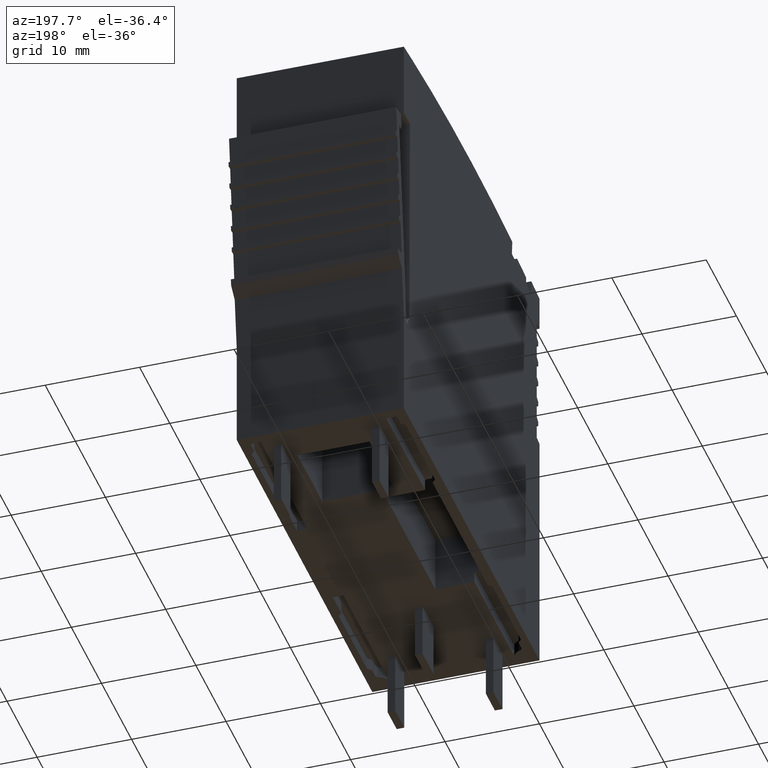
[diagram: clean part render]
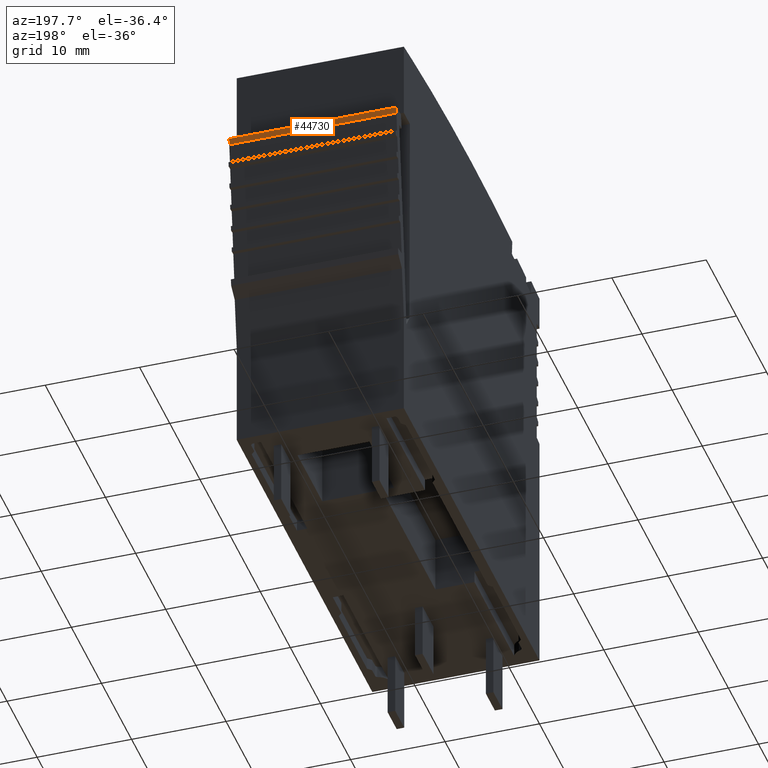
[diagram: same view with one face highlighted and labeled with its STEP entity id]
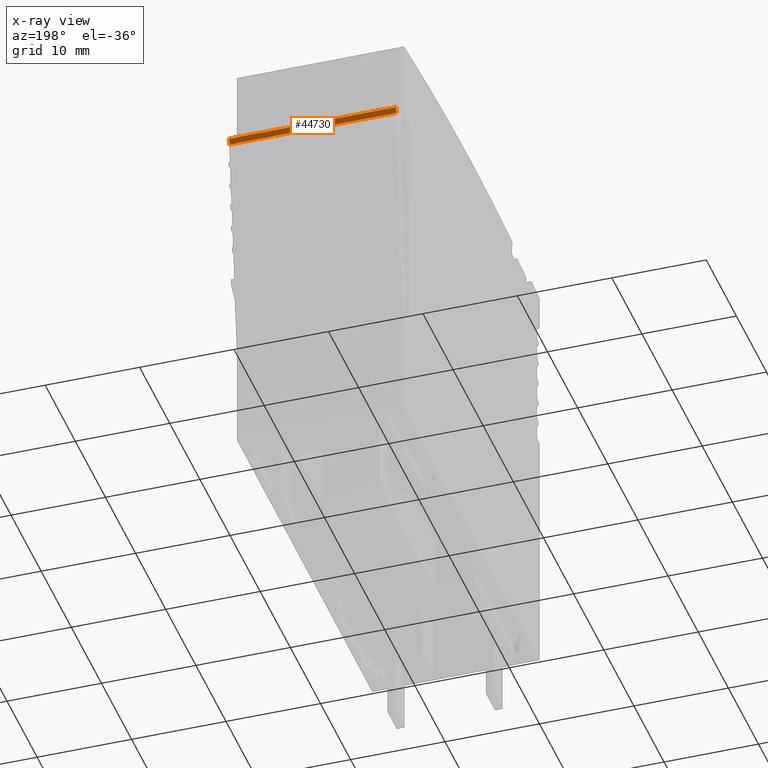
[diagram: x-ray of the same camera — body ghosted, the highlighted face saturated]
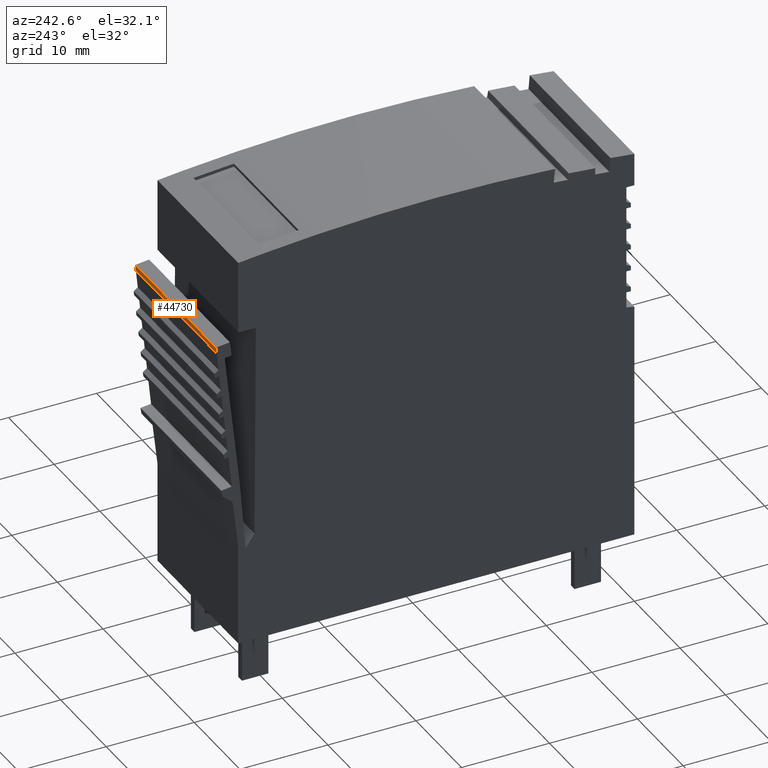
[diagram: same view with one face highlighted and labeled with its STEP entity id]
A machine part, auxiliary view. The second image highlights one B-rep face of the part: STEP entity #44730.
The next image is the same camera in x-ray: the body ghosted, the highlighted face saturated — about 0% of this face is hidden behind the body in this view.
A second angle (auxiliary view) of the same face is appended — the face is thin or edge-on in the first view.
In plain terms, the highlighted planar face has unit normal (-0, -0.9925, 0.1219).
Its self-contained STEP definition (entity closure, byte-faithful):
#2810=CARTESIAN_POINT('',(119.216369559486,90.6156046296992,
-2.14452701459528));
#2820=VERTEX_POINT('',#2810);
#2850=CARTESIAN_POINT('',(125.804434311543,36.9601229990142,
-2.1445270196024));
#2860=DIRECTION('',(-0.121869343405147,0.992546151641322,
9.26242618364502E-11));
#2870=VECTOR('',#2860,1.);
#2880=LINE('',#2850,#2870);
#2890=CARTESIAN_POINT('',(119.13175985914,91.3046953404865,
-2.14452701453097));
#2900=VERTEX_POINT('',#2890);
#2910=EDGE_CURVE('',#2820,#2900,#2880,.T.);
#12040=CARTESIAN_POINT('',(119.13175985914,91.3046953420428,
-19.8445270169714));
#12050=VERTEX_POINT('',#12040);
#12080=CARTESIAN_POINT('',(125.804434311543,36.9601230005704,
-19.8445270217494));
#12090=DIRECTION('',(-0.121869343405147,0.992546151641322,
8.72667834866069E-11));
#12100=VECTOR('',#12090,1.);
#12110=LINE('',#12080,#12100);
#12120=CARTESIAN_POINT('',(119.21636955406,90.615604675447,
-19.8445270170319));
#12130=VERTEX_POINT('',#12120);
#12140=EDGE_CURVE('',#12130,#12050,#12110,.T.);
#44520=CARTESIAN_POINT('',(119.290190005566,90.0143853448387,
-19.0445270170848));
#44530=DIRECTION('',(0.992546151641322,0.121869343405147,
1.07150136918119E-11));
#44540=DIRECTION('',(-0.121869343405147,0.992546151641322,
8.72667834866069E-11));
#44550=AXIS2_PLACEMENT_3D('',#44520,#44530,#44540);
#44560=PLANE('',#44550);
#44570=ORIENTED_EDGE('',*,*,#12140,.F.);
#44580=CARTESIAN_POINT('',(119.13175985914,91.3046953414405,
-12.9945270159312));
#44590=DIRECTION('',(3.7666382607192E-27,-8.79221417989464E-11,1.));
#44600=VECTOR('',#44590,1.);
#44610=LINE('',#44580,#44600);
#44620=EDGE_CURVE('',#12050,#2900,#44610,.T.);
#44630=ORIENTED_EDGE('',*,*,#44620,.F.);
#44640=ORIENTED_EDGE('',*,*,#2910,.T.);
#44650=CARTESIAN_POINT('',(119.21636955616,90.6156046577423,
-12.9945270159918));
#44660=DIRECTION('',(3.06555767842559E-10,-2.5846185146025E-9,1.));
#44670=VECTOR('',#44660,1.);
#44680=LINE('',#44650,#44670);
#44690=EDGE_CURVE('',#12130,#2820,#44680,.T.);
#44700=ORIENTED_EDGE('',*,*,#44690,.T.);
#44710=EDGE_LOOP('',(#44700,#44640,#44630,#44570));
#44720=FACE_OUTER_BOUND('',#44710,.T.);
#44730=ADVANCED_FACE('',(#44720),#44560,.F.);